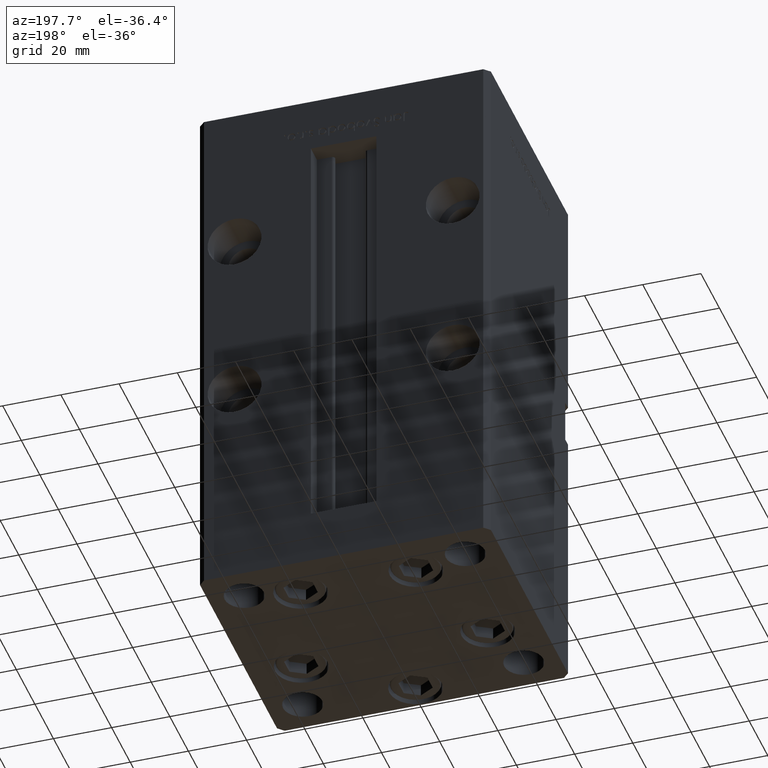
[diagram: clean part render]
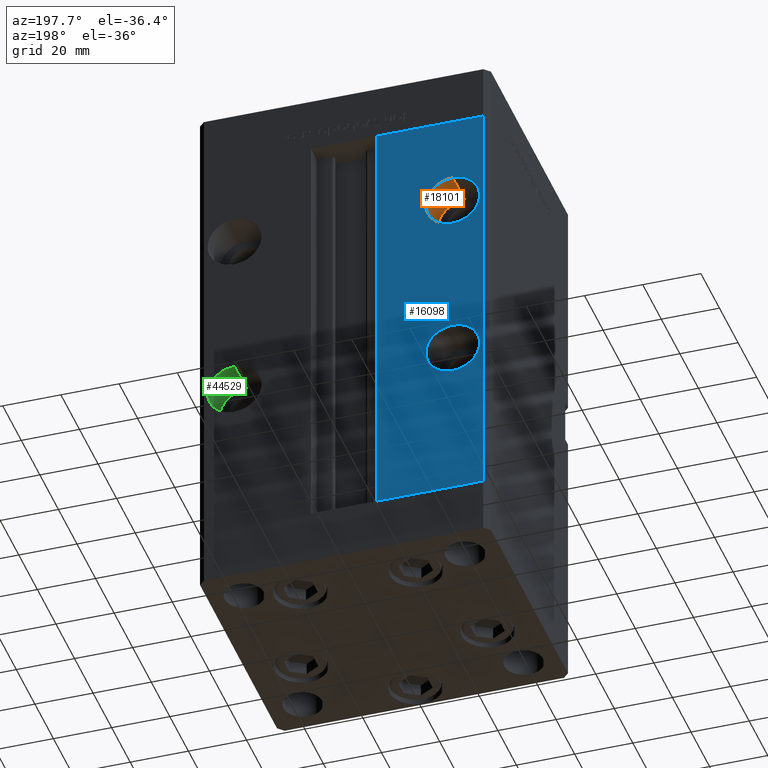
[diagram: same view with three faces highlighted in distinct colors, each labeled with its STEP entity id]
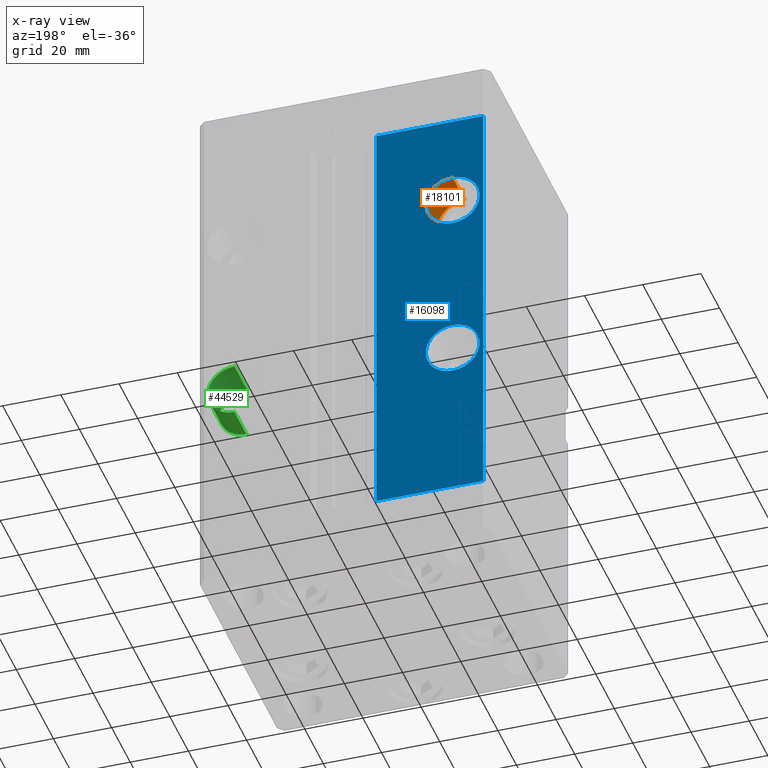
[diagram: x-ray of the same camera — body ghosted, the three highlighted faces saturated]
A machine part, auxiliary view with three faces highlighted in distinct colors.
The next image is the same camera in x-ray (body ghosted, the three faces saturated) — at least one of them is partly hidden behind the body in this view.
Their STEP definitions:

[orange] entity #18101 — the highlighted cylindrical surface (edge-blend (fillet) strip) has radius 9.25 mm, axis along (0, 1, 0).
#750 = EDGE_CURVE ( 'NONE', #8329, #8485, #38216, .T. ) ;
#3021 = DIRECTION ( 'NONE',  ( -0.000000000000000000, 1.000000000000000000, -0.000000000000000000 ) ) ;
#5648 = CIRCLE ( 'NONE', #41744, 9.250000000000008882 ) ;
#5880 = ORIENTED_EDGE ( 'NONE', *, *, #26613, .F. ) ;
#7152 = CARTESIAN_POINT ( 'NONE',  ( -37.50000000000000000, 43.50000000000000000, 116.4999999999999858 ) ) ;
#7314 = DIRECTION ( 'NONE',  ( -0.000000000000000000, 1.000000000000000000, -0.000000000000000000 ) ) ;
#8329 = VERTEX_POINT ( 'NONE', #41414 ) ;
#8485 = VERTEX_POINT ( 'NONE', #19541 ) ;
#8537 = ORIENTED_EDGE ( 'NONE', *, *, #750, .F. ) ;
#10295 = CARTESIAN_POINT ( 'NONE',  ( -37.50000000000000000, 30.50000000000000000, 116.4999999999999858 ) ) ;
#11024 = CYLINDRICAL_SURFACE ( 'NONE', #23730, 9.250000000000008882 ) ;
#11813 = DIRECTION ( 'NONE',  ( -0.000000000000000000, 1.000000000000000000, -0.000000000000000000 ) ) ;
#11871 = CARTESIAN_POINT ( 'NONE',  ( -37.50000000000000000, 30.50000000000000000, 125.7500000000000000 ) ) ;
#12128 = LINE ( 'NONE', #39882, #37612 ) ;
#12914 = VERTEX_POINT ( 'NONE', #41539 ) ;
#14858 = DIRECTION ( 'NONE',  ( 0.000000000000000000, 0.000000000000000000, -1.000000000000000000 ) ) ;
#15590 = CARTESIAN_POINT ( 'NONE',  ( -37.50000000000000000, 30.50000000000000000, 116.4999999999999858 ) ) ;
#15986 = DIRECTION ( 'NONE',  ( 0.000000000000000000, 0.000000000000000000, -1.000000000000000000 ) ) ;
#18101 = ADVANCED_FACE ( 'NONE', ( #47899 ), #11024, .F. ) ;
#19541 = CARTESIAN_POINT ( 'NONE',  ( -37.50000000000000000, 30.50000000000000000, 107.2499999999999858 ) ) ;
#19935 = LINE ( 'NONE', #11871, #50415 ) ;
#20162 = EDGE_CURVE ( 'NONE', #12914, #44746, #5648, .T. ) ;
#22804 = EDGE_CURVE ( 'NONE', #8329, #12914, #19935, .T. ) ;
#23730 = AXIS2_PLACEMENT_3D ( 'NONE', #15590, #11813, #40093 ) ;
#26613 = EDGE_CURVE ( 'NONE', #8485, #44746, #12128, .T. ) ;
#27339 = DIRECTION ( 'NONE',  ( 0.000000000000000000, 1.000000000000000000, -0.000000000000000000 ) ) ;
#35330 = DIRECTION ( 'NONE',  ( 0.000000000000000000, 1.000000000000000000, -0.000000000000000000 ) ) ;
#36030 = ORIENTED_EDGE ( 'NONE', *, *, #22804, .T. ) ;
#37612 = VECTOR ( 'NONE', #3021, 1000.000000000000000 ) ;
#38216 = CIRCLE ( 'NONE', #39898, 9.250000000000008882 ) ;
#39155 = ORIENTED_EDGE ( 'NONE', *, *, #20162, .T. ) ;
#39882 = CARTESIAN_POINT ( 'NONE',  ( -37.50000000000000000, 30.50000000000000000, 107.2499999999999858 ) ) ;
#39898 = AXIS2_PLACEMENT_3D ( 'NONE', #10295, #35330, #14858 ) ;
#40093 = DIRECTION ( 'NONE',  ( 0.000000000000000000, 0.000000000000000000, 1.000000000000000000 ) ) ;
#41414 = CARTESIAN_POINT ( 'NONE',  ( -37.50000000000000000, 30.50000000000000000, 125.7500000000000000 ) ) ;
#41539 = CARTESIAN_POINT ( 'NONE',  ( -37.50000000000000000, 43.50000000000000000, 125.7500000000000000 ) ) ;
#41744 = AXIS2_PLACEMENT_3D ( 'NONE', #7152, #27339, #15986 ) ;
#41820 = CARTESIAN_POINT ( 'NONE',  ( -37.50000000000000000, 43.50000000000000000, 107.2499999999999858 ) ) ;
#44746 = VERTEX_POINT ( 'NONE', #41820 ) ;
#46513 = EDGE_LOOP ( 'NONE', ( #5880, #8537, #36030, #39155 ) ) ;
#47899 = FACE_OUTER_BOUND ( 'NONE', #46513, .T. ) ;
#50415 = VECTOR ( 'NONE', #7314, 1000.000000000000000 ) ;

[blue] entity #16098 — the highlighted planar face has unit normal (0, -1, 0).
#1467 = VECTOR ( 'NONE', #15384, 1000.000000000000000 ) ;
#2042 = DIRECTION ( 'NONE',  ( 0.000000000000000000, 0.000000000000000000, -1.000000000000000000 ) ) ;
#2161 = CARTESIAN_POINT ( 'NONE',  ( -48.00000000000000711, 43.50000000000000000, 0.000000000000000000 ) ) ;
#2838 = LINE ( 'NONE', #19213, #28976 ) ;
#3349 = CARTESIAN_POINT ( 'NONE',  ( -37.50000000000000000, 43.50000000000000000, 56.49999999999998579 ) ) ;
#3869 = DIRECTION ( 'NONE',  ( 0.000000000000000000, 0.000000000000000000, 1.000000000000000000 ) ) ;
#4327 = EDGE_LOOP ( 'NONE', ( #8059, #20708 ) ) ;
#4590 = CARTESIAN_POINT ( 'NONE',  ( -37.50000000000000000, 43.50000000000000000, 65.74999999999998579 ) ) ;
#4984 = DIRECTION ( 'NONE',  ( 0.000000000000000000, -0.000000000000000000, -1.000000000000000000 ) ) ;
#5148 = CARTESIAN_POINT ( 'NONE',  ( -11.24999999999999645, 43.50000000000000000, 0.000000000000000000 ) ) ;
#5648 = CIRCLE ( 'NONE', #41744, 9.250000000000008882 ) ;
#6325 = DIRECTION ( 'NONE',  ( 0.000000000000000000, 1.000000000000000000, 0.000000000000000000 ) ) ;
#6402 = LINE ( 'NONE', #17704, #52135 ) ;
#7060 = CARTESIAN_POINT ( 'NONE',  ( -11.24999999999999645, 43.50000000000000000, 0.000000000000000000 ) ) ;
#7152 = CARTESIAN_POINT ( 'NONE',  ( -37.50000000000000000, 43.50000000000000000, 116.4999999999999858 ) ) ;
#7895 = DIRECTION ( 'NONE',  ( 0.000000000000000000, 1.000000000000000000, 0.000000000000000000 ) ) ;
#8059 = ORIENTED_EDGE ( 'NONE', *, *, #20162, .F. ) ;
#8171 = VECTOR ( 'NONE', #10390, 1000.000000000000000 ) ;
#8211 = CIRCLE ( 'NONE', #52015, 9.250000000000001776 ) ;
#8260 = ORIENTED_EDGE ( 'NONE', *, *, #19337, .F. ) ;
#10390 = DIRECTION ( 'NONE',  ( -0.000000000000000000, -0.000000000000000000, 1.000000000000000000 ) ) ;
#10551 = EDGE_CURVE ( 'NONE', #20975, #52348, #37627, .T. ) ;
#10735 = VERTEX_POINT ( 'NONE', #17567 ) ;
#12914 = VERTEX_POINT ( 'NONE', #41539 ) ;
#13668 = DIRECTION ( 'NONE',  ( 1.000000000000000000, 0.000000000000000000, 0.000000000000000000 ) ) ;
#13904 = CARTESIAN_POINT ( 'NONE',  ( -48.00000000000000711, 43.50000000000000000, 148.5000000000000000 ) ) ;
#15384 = DIRECTION ( 'NONE',  ( -1.000000000000000000, 0.000000000000000000, 0.000000000000000000 ) ) ;
#15986 = DIRECTION ( 'NONE',  ( 0.000000000000000000, 0.000000000000000000, -1.000000000000000000 ) ) ;
#16098 = ADVANCED_FACE ( 'NONE', ( #20828, #37263, #29188 ), #45617, .F. ) ;
#17484 = ORIENTED_EDGE ( 'NONE', *, *, #23317, .T. ) ;
#17567 = CARTESIAN_POINT ( 'NONE',  ( -11.24999999999999645, 43.50000000000000000, 148.5000000000000000 ) ) ;
#17677 = AXIS2_PLACEMENT_3D ( 'NONE', #34333, #50738, #2042 ) ;
#17704 = CARTESIAN_POINT ( 'NONE',  ( -11.24999999999999645, 43.50000000000000000, 148.5000000000000000 ) ) ;
#17879 = AXIS2_PLACEMENT_3D ( 'NONE', #3349, #7895, #3869 ) ;
#18454 = LINE ( 'NONE', #51561, #8171 ) ;
#19213 = CARTESIAN_POINT ( 'NONE',  ( -48.00000000000000711, 43.50000000000000000, 148.5000000000000000 ) ) ;
#19337 = EDGE_CURVE ( 'NONE', #44487, #10735, #18454, .T. ) ;
#20162 = EDGE_CURVE ( 'NONE', #12914, #44746, #5648, .T. ) ;
#20708 = ORIENTED_EDGE ( 'NONE', *, *, #20756, .F. ) ;
#20756 = EDGE_CURVE ( 'NONE', #44746, #12914, #40883, .T. ) ;
#20828 = FACE_BOUND ( 'NONE', #4327, .T. ) ;
#20902 = EDGE_CURVE ( 'NONE', #52348, #20975, #8211, .T. ) ;
#20975 = VERTEX_POINT ( 'NONE', #35897 ) ;
#22702 = EDGE_CURVE ( 'NONE', #44487, #32181, #35591, .T. ) ;
#23317 = EDGE_CURVE ( 'NONE', #41367, #10735, #6402, .T. ) ;
#24420 = EDGE_CURVE ( 'NONE', #41367, #32181, #2838, .T. ) ;
#27339 = DIRECTION ( 'NONE',  ( 0.000000000000000000, 1.000000000000000000, -0.000000000000000000 ) ) ;
#28976 = VECTOR ( 'NONE', #35654, 1000.000000000000000 ) ;
#29188 = FACE_OUTER_BOUND ( 'NONE', #50321, .T. ) ;
#30549 = CARTESIAN_POINT ( 'NONE',  ( -37.50000000000000000, 43.50000000000000000, 56.49999999999998579 ) ) ;
#32181 = VERTEX_POINT ( 'NONE', #2161 ) ;
#32499 = EDGE_LOOP ( 'NONE', ( #47591, #34195 ) ) ;
#34195 = ORIENTED_EDGE ( 'NONE', *, *, #10551, .F. ) ;
#34333 = CARTESIAN_POINT ( 'NONE',  ( -37.50000000000000000, 43.50000000000000000, 116.4999999999999858 ) ) ;
#35591 = LINE ( 'NONE', #7060, #1467 ) ;
#35654 = DIRECTION ( 'NONE',  ( -0.000000000000000000, -0.000000000000000000, -1.000000000000000000 ) ) ;
#35897 = CARTESIAN_POINT ( 'NONE',  ( -37.50000000000000000, 43.50000000000000000, 47.24999999999998579 ) ) ;
#37263 = FACE_BOUND ( 'NONE', #32499, .T. ) ;
#37627 = CIRCLE ( 'NONE', #17879, 9.250000000000001776 ) ;
#38325 = AXIS2_PLACEMENT_3D ( 'NONE', #49902, #41846, #4984 ) ;
#40883 = CIRCLE ( 'NONE', #17677, 9.250000000000008882 ) ;
#41367 = VERTEX_POINT ( 'NONE', #13904 ) ;
#41539 = CARTESIAN_POINT ( 'NONE',  ( -37.50000000000000000, 43.50000000000000000, 125.7500000000000000 ) ) ;
#41744 = AXIS2_PLACEMENT_3D ( 'NONE', #7152, #27339, #15986 ) ;
#41820 = CARTESIAN_POINT ( 'NONE',  ( -37.50000000000000000, 43.50000000000000000, 107.2499999999999858 ) ) ;
#41846 = DIRECTION ( 'NONE',  ( 0.000000000000000000, -1.000000000000000000, 0.000000000000000000 ) ) ;
#43713 = DIRECTION ( 'NONE',  ( 0.000000000000000000, 0.000000000000000000, 1.000000000000000000 ) ) ;
#44487 = VERTEX_POINT ( 'NONE', #5148 ) ;
#44746 = VERTEX_POINT ( 'NONE', #41820 ) ;
#45617 = PLANE ( 'NONE',  #38325 ) ;
#47591 = ORIENTED_EDGE ( 'NONE', *, *, #20902, .F. ) ;
#49902 = CARTESIAN_POINT ( 'NONE',  ( -11.24999999999999645, 43.50000000000000000, 148.5000000000000000 ) ) ;
#50321 = EDGE_LOOP ( 'NONE', ( #17484, #8260, #53032, #52686 ) ) ;
#50738 = DIRECTION ( 'NONE',  ( 0.000000000000000000, 1.000000000000000000, -0.000000000000000000 ) ) ;
#51561 = CARTESIAN_POINT ( 'NONE',  ( -11.24999999999999645, 43.50000000000000000, 0.000000000000000000 ) ) ;
#52015 = AXIS2_PLACEMENT_3D ( 'NONE', #30549, #6325, #43713 ) ;
#52135 = VECTOR ( 'NONE', #13668, 1000.000000000000000 ) ;
#52348 = VERTEX_POINT ( 'NONE', #4590 ) ;
#52686 = ORIENTED_EDGE ( 'NONE', *, *, #24420, .F. ) ;
#53032 = ORIENTED_EDGE ( 'NONE', *, *, #22702, .T. ) ;

[green] entity #44529 — the highlighted cylindrical surface (edge-blend (fillet) strip) has radius 9.25 mm, axis along (0, 1, 0).
#1034 = CARTESIAN_POINT ( 'NONE',  ( 37.50000000000000000, 30.50000000000000000, 47.24999999999998579 ) ) ;
#1275 = CARTESIAN_POINT ( 'NONE',  ( 37.50000000000000000, 43.50000000000000000, 47.24999999999998579 ) ) ;
#2798 = VERTEX_POINT ( 'NONE', #42498 ) ;
#3146 = ORIENTED_EDGE ( 'NONE', *, *, #14098, .F. ) ;
#3226 = DIRECTION ( 'NONE',  ( 0.000000000000000000, 1.000000000000000000, -0.000000000000000000 ) ) ;
#5125 = VERTEX_POINT ( 'NONE', #26810 ) ;
#5461 = LINE ( 'NONE', #50377, #44731 ) ;
#5702 = CARTESIAN_POINT ( 'NONE',  ( 37.50000000000000000, 30.50000000000000000, 47.24999999999998579 ) ) ;
#9172 = DIRECTION ( 'NONE',  ( 0.000000000000000000, 0.000000000000000000, -1.000000000000000000 ) ) ;
#9180 = EDGE_CURVE ( 'NONE', #2798, #35088, #10959, .T. ) ;
#9436 = CARTESIAN_POINT ( 'NONE',  ( 37.50000000000000000, 30.50000000000000000, 56.49999999999998579 ) ) ;
#10959 = CIRCLE ( 'NONE', #16093, 9.250000000000001776 ) ;
#12934 = DIRECTION ( 'NONE',  ( -0.000000000000000000, 1.000000000000000000, -0.000000000000000000 ) ) ;
#13507 = DIRECTION ( 'NONE',  ( -0.000000000000000000, 1.000000000000000000, -0.000000000000000000 ) ) ;
#13748 = DIRECTION ( 'NONE',  ( 0.000000000000000000, 1.000000000000000000, -0.000000000000000000 ) ) ;
#14098 = EDGE_CURVE ( 'NONE', #42803, #35088, #38245, .T. ) ;
#16093 = AXIS2_PLACEMENT_3D ( 'NONE', #45522, #13748, #9172 ) ;
#21535 = CYLINDRICAL_SURFACE ( 'NONE', #29455, 9.250000000000001776 ) ;
#22311 = EDGE_CURVE ( 'NONE', #5125, #42803, #41780, .T. ) ;
#24964 = ORIENTED_EDGE ( 'NONE', *, *, #52236, .T. ) ;
#25854 = DIRECTION ( 'NONE',  ( 0.000000000000000000, 0.000000000000000000, 1.000000000000000000 ) ) ;
#26810 = CARTESIAN_POINT ( 'NONE',  ( 37.50000000000000000, 30.50000000000000000, 65.74999999999998579 ) ) ;
#29455 = AXIS2_PLACEMENT_3D ( 'NONE', #9436, #12934, #25854 ) ;
#35088 = VERTEX_POINT ( 'NONE', #1275 ) ;
#36830 = DIRECTION ( 'NONE',  ( 0.000000000000000000, 0.000000000000000000, -1.000000000000000000 ) ) ;
#38245 = LINE ( 'NONE', #5702, #50722 ) ;
#41714 = EDGE_LOOP ( 'NONE', ( #3146, #50503, #24964, #51900 ) ) ;
#41745 = FACE_OUTER_BOUND ( 'NONE', #41714, .T. ) ;
#41780 = CIRCLE ( 'NONE', #43505, 9.250000000000001776 ) ;
#42498 = CARTESIAN_POINT ( 'NONE',  ( 37.50000000000000000, 43.50000000000000000, 65.74999999999998579 ) ) ;
#42803 = VERTEX_POINT ( 'NONE', #1034 ) ;
#43505 = AXIS2_PLACEMENT_3D ( 'NONE', #49205, #3226, #36830 ) ;
#44529 = ADVANCED_FACE ( 'NONE', ( #41745 ), #21535, .F. ) ;
#44731 = VECTOR ( 'NONE', #13507, 1000.000000000000000 ) ;
#45522 = CARTESIAN_POINT ( 'NONE',  ( 37.50000000000000000, 43.50000000000000000, 56.49999999999998579 ) ) ;
#49205 = CARTESIAN_POINT ( 'NONE',  ( 37.50000000000000000, 30.50000000000000000, 56.49999999999998579 ) ) ;
#50377 = CARTESIAN_POINT ( 'NONE',  ( 37.50000000000000000, 30.50000000000000000, 65.74999999999998579 ) ) ;
#50503 = ORIENTED_EDGE ( 'NONE', *, *, #22311, .F. ) ;
#50626 = DIRECTION ( 'NONE',  ( -0.000000000000000000, 1.000000000000000000, -0.000000000000000000 ) ) ;
#50722 = VECTOR ( 'NONE', #50626, 1000.000000000000000 ) ;
#51900 = ORIENTED_EDGE ( 'NONE', *, *, #9180, .T. ) ;
#52236 = EDGE_CURVE ( 'NONE', #5125, #2798, #5461, .T. ) ;